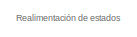
[diagram: root canvas - part 1/12, top left region]
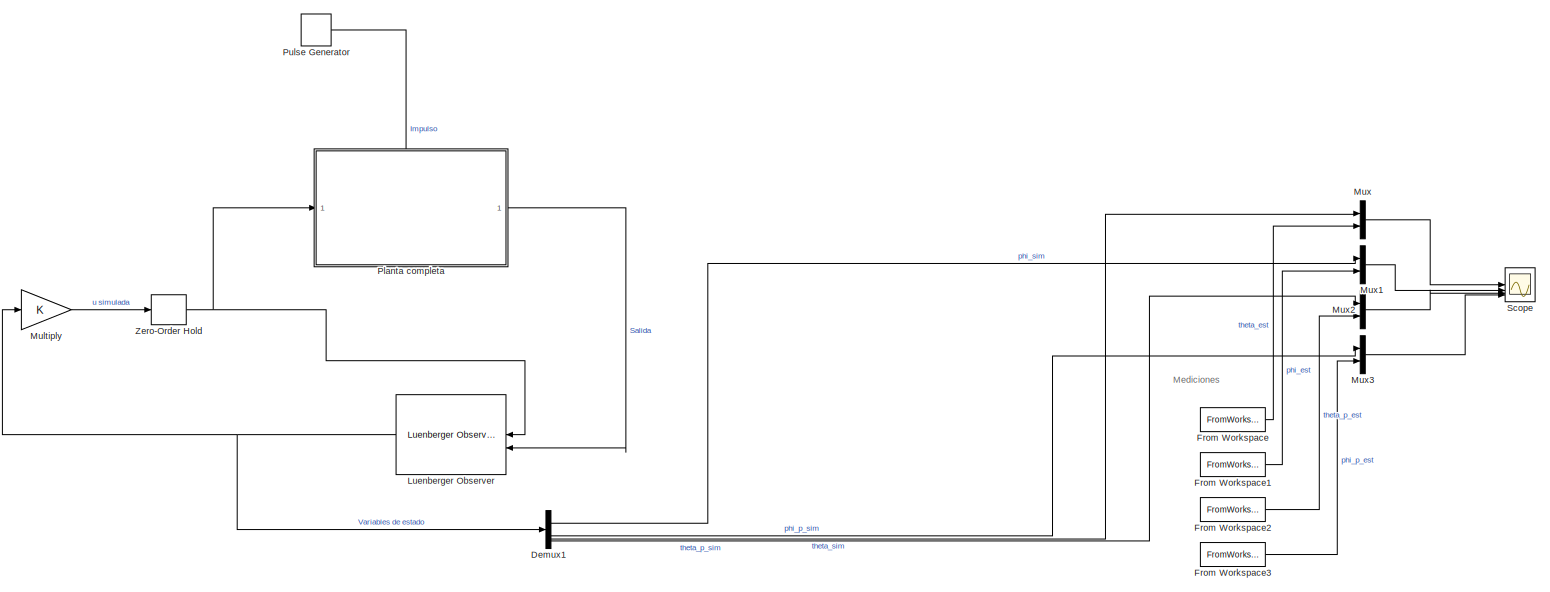
[diagram: root canvas - part 2/12, top left region]
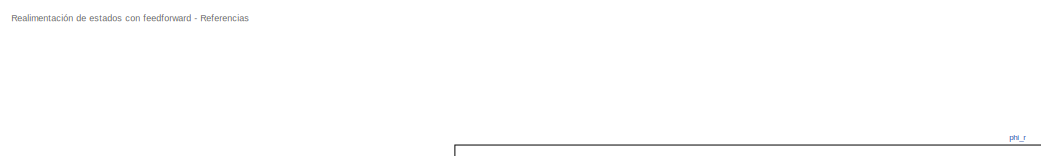
[diagram: root canvas - part 3/12, middle left region]
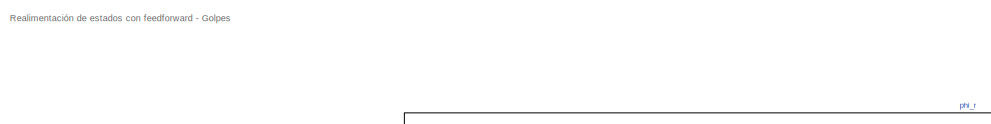
[diagram: root canvas - part 4/12, middle right region]
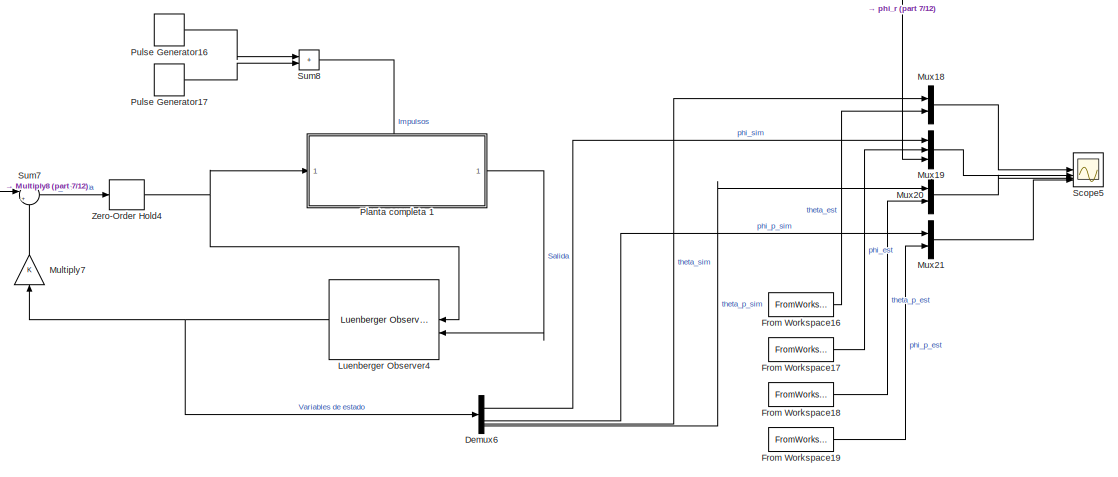
[diagram: root canvas - part 5/12, middle right region]
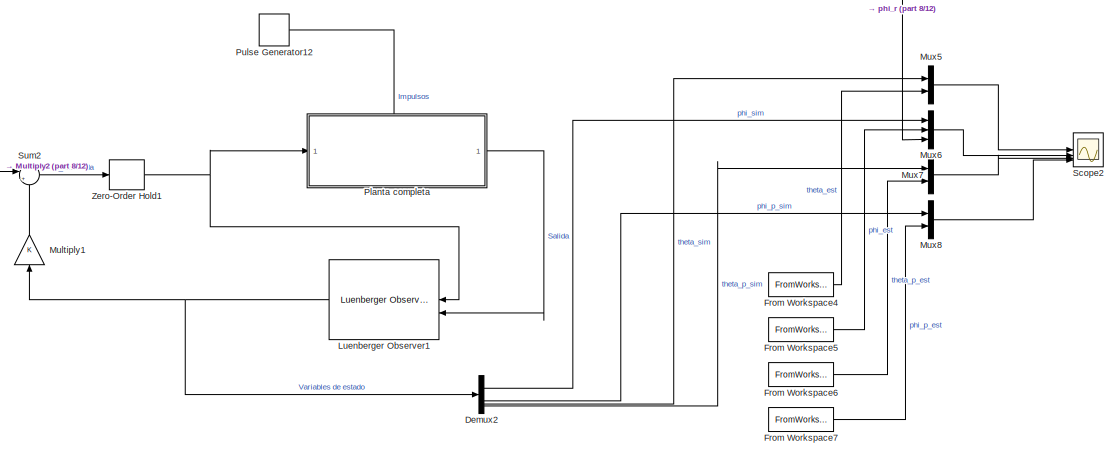
[diagram: root canvas - part 6/12, middle left region]
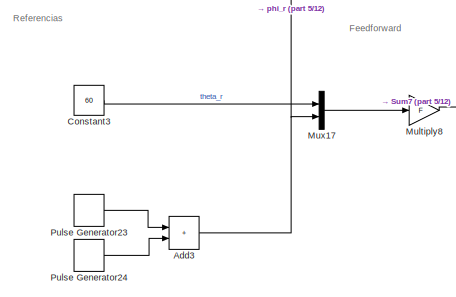
[diagram: root canvas - part 7/12, central region]
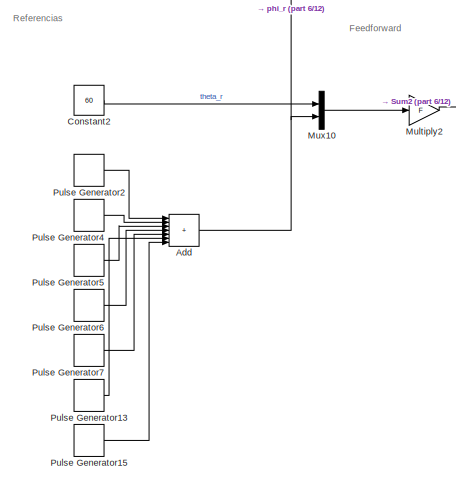
[diagram: root canvas - part 8/12, middle left region]
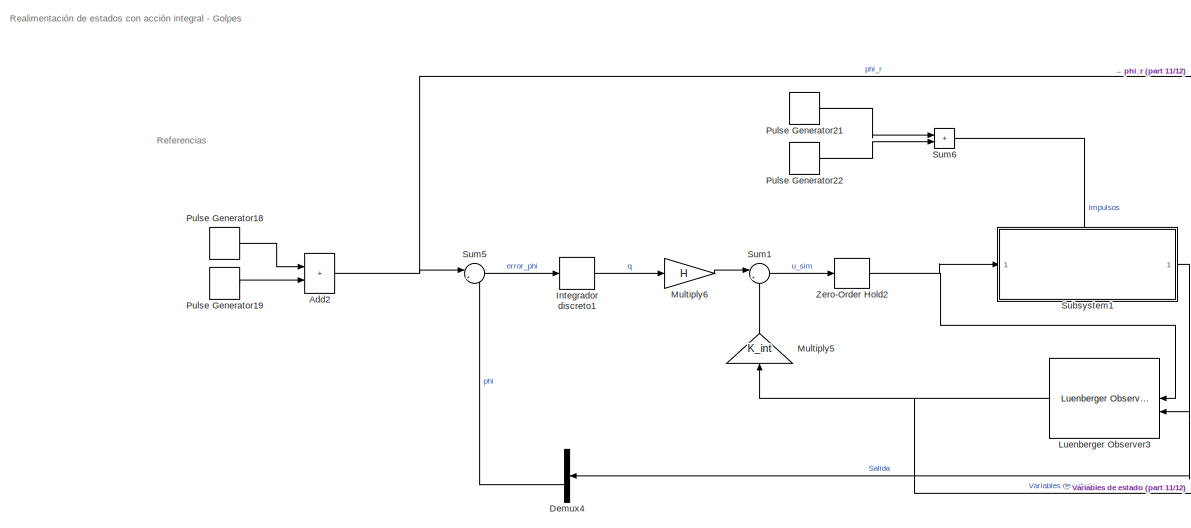
[diagram: root canvas - part 9/12, bottom center region]
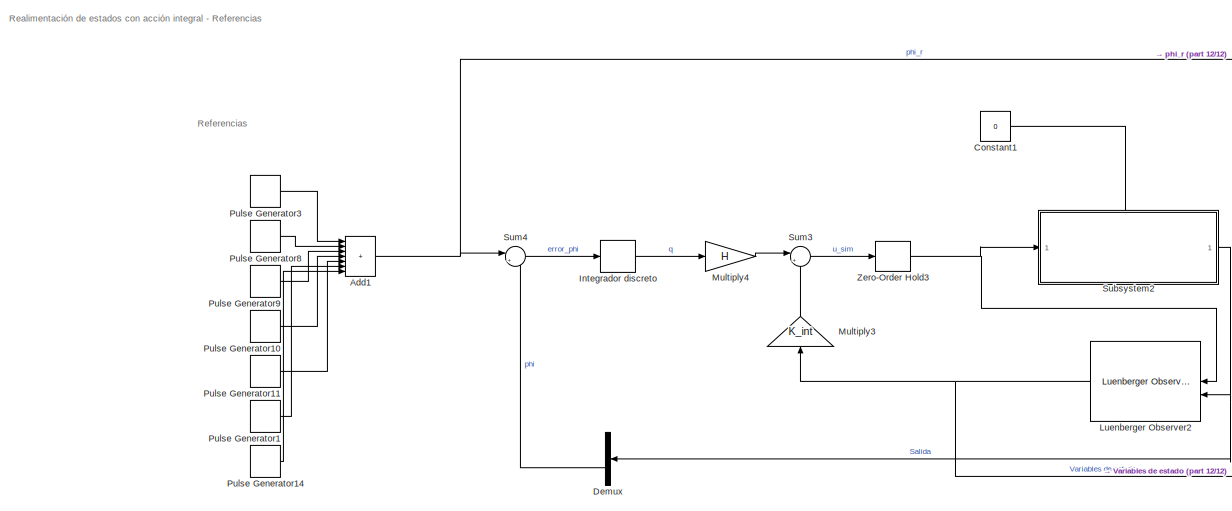
[diagram: root canvas - part 10/12, bottom left region]
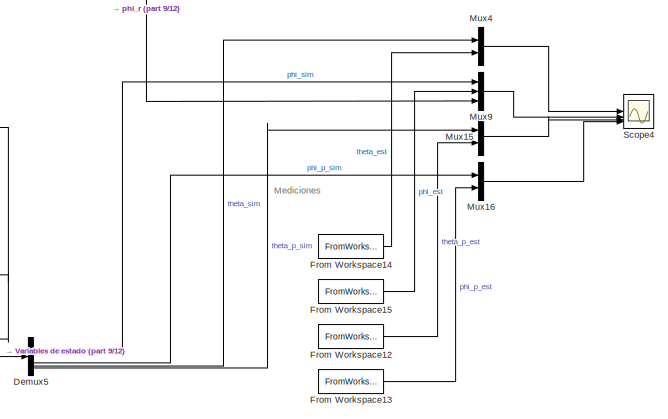
[diagram: root canvas - part 11/12, bottom right region]
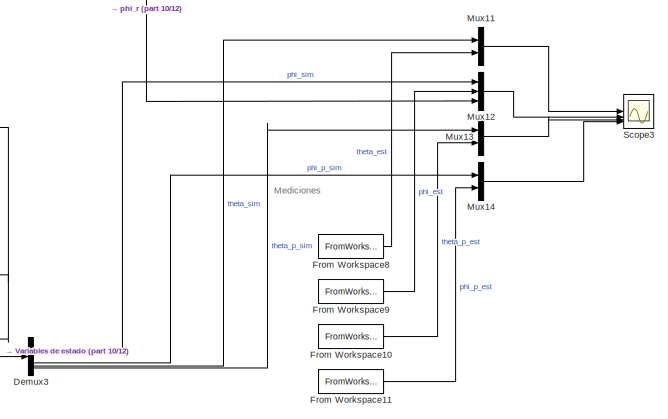
[diagram: root canvas - part 12/12, bottom center region]
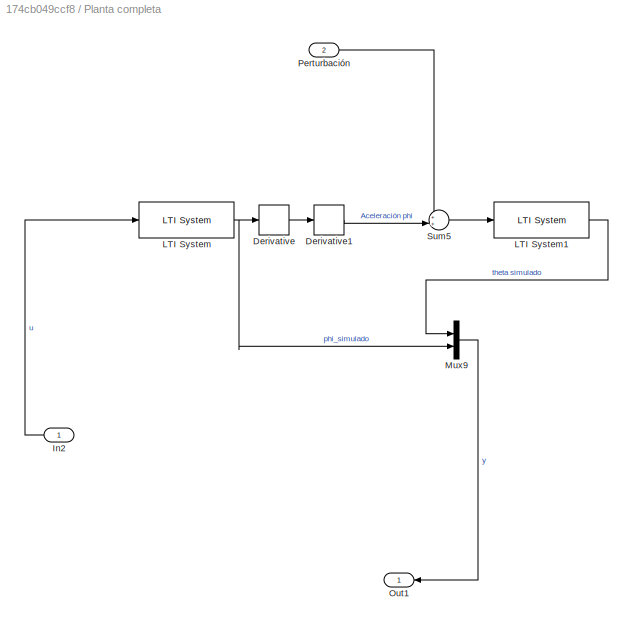
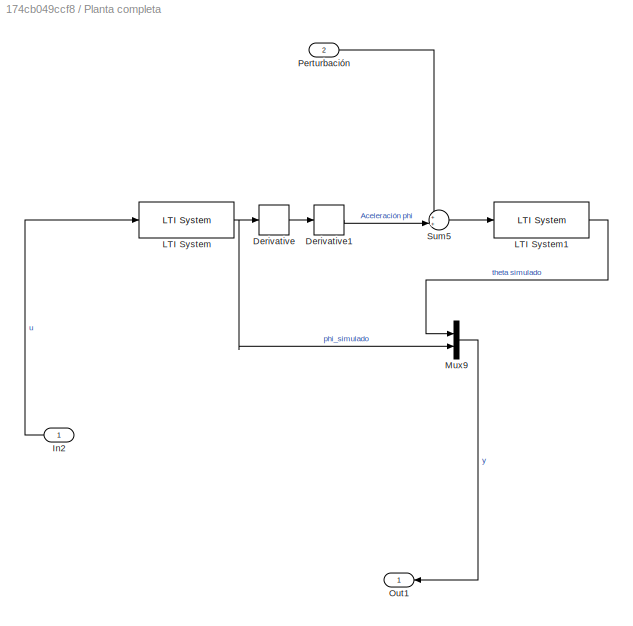
MODEL slx_174cb049ccf8
KIND model
CONFIG AbsTol = auto
CONFIG EnableMultiTasking = off
CONFIG FixedStep = auto
CONFIG MaxStep = auto
CONFIG MinStep = auto
CONFIG RelTol = 1e-3
CONFIG SampleTimeConstraint = Unconstrained
CONFIG SolverName = VariableStepAuto
CONFIG StartTime = 0.0
CONFIG StopTime = 56
BLOCK [Sum] Add
  IconShape = rectangular
  Inputs = +++++++
BLOCK [Sum] Add1
  IconShape = rectangular
  Inputs = +++++++
BLOCK [Sum] Add2
  IconShape = rectangular
BLOCK [Sum] Add3
  IconShape = rectangular
BLOCK [Constant] Constant1
  Value = 0
BLOCK [Constant] Constant2
  Value = 60
BLOCK [Constant] Constant3
  Value = 60
BLOCK [Demux] Demux
  Outputs = 2
BLOCK [Demux] Demux1
BLOCK [Demux] Demux2
BLOCK [Demux] Demux3
BLOCK [Demux] Demux4
  Outputs = 2
BLOCK [Demux] Demux5
BLOCK [Demux] Demux6
BLOCK [FromWorkspace] From Workspace
  OutDataTypeStr = double
  OutputAfterFinalValue = Setting to zero
  SampleTime = T
  VariableName = theta_est
BLOCK [FromWorkspace] From Workspace1
  OutDataTypeStr = double
  OutputAfterFinalValue = Setting to zero
  SampleTime = T
  VariableName = phi_est
BLOCK [FromWorkspace] From Workspace10
  OutDataTypeStr = double
  SampleTime = T
  VariableName = theta_p_est_he
BLOCK [FromWorkspace] From Workspace11
  OutDataTypeStr = double
  SampleTime = T
  VariableName = phi_p_est_he
BLOCK [FromWorkspace] From Workspace12
  OutDataTypeStr = double
  SampleTime = T
  VariableName = theta_p_est_hi
BLOCK [FromWorkspace] From Workspace13
  OutDataTypeStr = double
  SampleTime = T
  VariableName = phi_p_est_hi
BLOCK [FromWorkspace] From Workspace14
  OutDataTypeStr = double
  OutputAfterFinalValue = Setting to zero
  SampleTime = T
  VariableName = theta_est_hi
BLOCK [FromWorkspace] From Workspace15
  OutDataTypeStr = double
  SampleTime = T
  VariableName = phi_est_hi
BLOCK [FromWorkspace] From Workspace16
  OutDataTypeStr = double
  OutputAfterFinalValue = Setting to zero
  SampleTime = T
  VariableName = theta_est_fi
BLOCK [FromWorkspace] From Workspace17
  OutputAfterFinalValue = Setting to zero
  SampleTime = T
  VariableName = phi_est_fi
BLOCK [FromWorkspace] From Workspace18
  OutDataTypeStr = double
  OutputAfterFinalValue = Setting to zero
  SampleTime = T
  VariableName = theta_p_est_fi
BLOCK [FromWorkspace] From Workspace19
  OutDataTypeStr = double
  OutputAfterFinalValue = Setting to zero
  SampleTime = T
  VariableName = phi_p_est_fi
BLOCK [FromWorkspace] From Workspace2
  OutDataTypeStr = double
  OutputAfterFinalValue = Setting to zero
  SampleTime = T
  VariableName = theta_p_est
BLOCK [FromWorkspace] From Workspace3
  OutDataTypeStr = double
  OutputAfterFinalValue = Setting to zero
  SampleTime = T
  VariableName = phi_p_est
BLOCK [FromWorkspace] From Workspace4
  OutDataTypeStr = double
  OutputAfterFinalValue = Setting to zero
  SampleTime = T
  VariableName = theta_est_fe
BLOCK [FromWorkspace] From Workspace5
  OutDataTypeStr = double
  SampleTime = T
  VariableName = phi_est_fe
BLOCK [FromWorkspace] From Workspace6
  OutDataTypeStr = double
  SampleTime = T
  VariableName = theta_p_est_fe
BLOCK [FromWorkspace] From Workspace7
  OutDataTypeStr = double
  SampleTime = T
  VariableName = phi_p_est_fe
BLOCK [FromWorkspace] From Workspace8
  OutDataTypeStr = double
  OutputAfterFinalValue = Setting to zero
  SampleTime = T
  VariableName = theta_est_he
BLOCK [FromWorkspace] From Workspace9
  OutDataTypeStr = double
  SampleTime = T
  VariableName = phi_est_he
BLOCK [DiscreteIntegrator] Integrador discreto
  ICPrevOutput = DiscIntNeverNeededParam
  ICPrevScaledInput = DiscIntNeverNeededParam
  InitialConditionSetting = Auto
  SampleTime = T
  gainval = 1/T
BLOCK [DiscreteIntegrator] Integrador discreto1
  ICPrevOutput = DiscIntNeverNeededParam
  ICPrevScaledInput = DiscIntNeverNeededParam
  InitialConditionSetting = Auto
  SampleTime = T
  gainval = 1/T
BLOCK [Reference] Luenberger Observer  REF=eeLuenbergerObserver/Luenberger Observer
  LibrarySourceBlock = ee_sl_lib/Observers/Luenberger Observer
  SourceBlock = eeLuenbergerObserver/Luenberger Observer
  SourceType = Luenberger Observer
BLOCK [Reference] Luenberger Observer1  REF=eeLuenbergerObserver/Luenberger Observer
  LibrarySourceBlock = ee_sl_lib/Observers/Luenberger Observer
  SourceBlock = eeLuenbergerObserver/Luenberger Observer
  SourceType = Luenberger Observer
BLOCK [Reference] Luenberger Observer2  REF=eeLuenbergerObserver/Luenberger Observer
  LibrarySourceBlock = ee_sl_lib/Observers/Luenberger Observer
  SourceBlock = eeLuenbergerObserver/Luenberger Observer
  SourceType = Luenberger Observer
BLOCK [Reference] Luenberger Observer3  REF=eeLuenbergerObserver/Luenberger Observer
  LibrarySourceBlock = ee_sl_lib/Observers/Luenberger Observer
  SourceBlock = eeLuenbergerObserver/Luenberger Observer
  SourceType = Luenberger Observer
BLOCK [Reference] Luenberger Observer4  REF=eeLuenbergerObserver/Luenberger Observer
  LibrarySourceBlock = ee_sl_lib/Observers/Luenberger Observer
  SourceBlock = eeLuenbergerObserver/Luenberger Observer
  SourceType = Luenberger Observer
BLOCK [Gain] Multiply
  Gain = K
  Multiplication = Matrix(K*u)
BLOCK [Gain] Multiply1
  Gain = K
  Multiplication = Matrix(K*u)
  NameLocation = right
BLOCK [Gain] Multiply2
  Gain = F
  Multiplication = Matrix(K*u)
BLOCK [Gain] Multiply3
  Gain = K_int
  Multiplication = Matrix(K*u)
  NameLocation = right
BLOCK [Gain] Multiply4
  Gain = H
  Multiplication = Matrix(K*u)
BLOCK [Gain] Multiply5
  Gain = K_int
  Multiplication = Matrix(K*u)
  NameLocation = right
BLOCK [Gain] Multiply6
  Gain = H
  Multiplication = Matrix(K*u)
BLOCK [Gain] Multiply7
  Gain = K
  Multiplication = Matrix(K*u)
  NameLocation = right
BLOCK [Gain] Multiply8
  Gain = F
  Multiplication = Matrix(K*u)
BLOCK [Mux] Mux
  DisplayOption = bar
  Inputs = 2
BLOCK [Mux] Mux1
  DisplayOption = bar
  Inputs = 2
BLOCK [Mux] Mux10
  DisplayOption = bar
  Inputs = 2
BLOCK [Mux] Mux11
  DisplayOption = bar
  Inputs = 2
BLOCK [Mux] Mux12
  DisplayOption = bar
  Inputs = 3
BLOCK [Mux] Mux13
  DisplayOption = bar
  Inputs = 2
BLOCK [Mux] Mux14
  DisplayOption = bar
  Inputs = 2
BLOCK [Mux] Mux15
  DisplayOption = bar
  Inputs = 2
BLOCK [Mux] Mux16
  DisplayOption = bar
  Inputs = 2
BLOCK [Mux] Mux17
  DisplayOption = bar
  Inputs = 2
BLOCK [Mux] Mux18
  DisplayOption = bar
  Inputs = 2
BLOCK [Mux] Mux19
  DisplayOption = bar
  Inputs = 3
BLOCK [Mux] Mux2
  DisplayOption = bar
  Inputs = 2
BLOCK [Mux] Mux20
  DisplayOption = bar
  Inputs = 2
BLOCK [Mux] Mux21
  DisplayOption = bar
  Inputs = 2
BLOCK [Mux] Mux3
  DisplayOption = bar
  Inputs = 2
BLOCK [Mux] Mux4
  DisplayOption = bar
  Inputs = 2
BLOCK [Mux] Mux5
  DisplayOption = bar
  Inputs = 2
BLOCK [Mux] Mux6
  DisplayOption = bar
  Inputs = 3
BLOCK [Mux] Mux7
  DisplayOption = bar
  Inputs = 2
BLOCK [Mux] Mux8
  DisplayOption = bar
  Inputs = 2
BLOCK [Mux] Mux9
  DisplayOption = bar
  Inputs = 3
BLOCK [SubSystem] Planta completa
  PortSchema = {"entries":[{"content":{"sides":[{"content":{"connectorIds":["In1"]},"type":"ConnectorPlacement.EquallySpacedRectSide","uuid":"327bad0f-c414-403a-b9df-5d815b8b637d"},{"content":{"connectorIds":["Out1"],"side":"RIGHT"},"type":"ConnectorPlacement.EquallySpacedRectSide","uuid":"9527d032-ecf2-4fa1-93b0-9f68fe8f2eae"},{"content":{"connectorIds":["In2"],"side":"TOP"},"type":"ConnectorPlacement.EquallySp...<+245ch>  <repeated x5 — deduplicated; at blocks: Planta completa, Planta completa 1, Subsystem1, Subsystem2>
BLOCK [SubSystem] Planta completa 
BLOCK [Derivative] Planta completa /Derivative
BLOCK [Derivative] Planta completa /Derivative1
BLOCK [Inport] Planta completa /In2
  IconDisplay = Signal name
BLOCK [Reference] Planta completa /LTI System  REF=cstblocks/LTI System
  SourceBlock = cstblocks/LTI System
  SourceType = LTI Block
BLOCK [Reference] Planta completa /LTI System1  REF=cstblocks/LTI System
  SourceBlock = cstblocks/LTI System
  SourceType = LTI Block
BLOCK [Mux] Planta completa /Mux9
  DisplayOption = bar
  Inputs = 2
BLOCK [Outport] Planta completa /Out1
  IconDisplay = Signal name
BLOCK [Inport] Planta completa /Perturbación
  Port = 2
BLOCK [Sum] Planta completa /Sum5
  AccumDataTypeStr = single
  InputSameDT = on
  Inputs = ++|
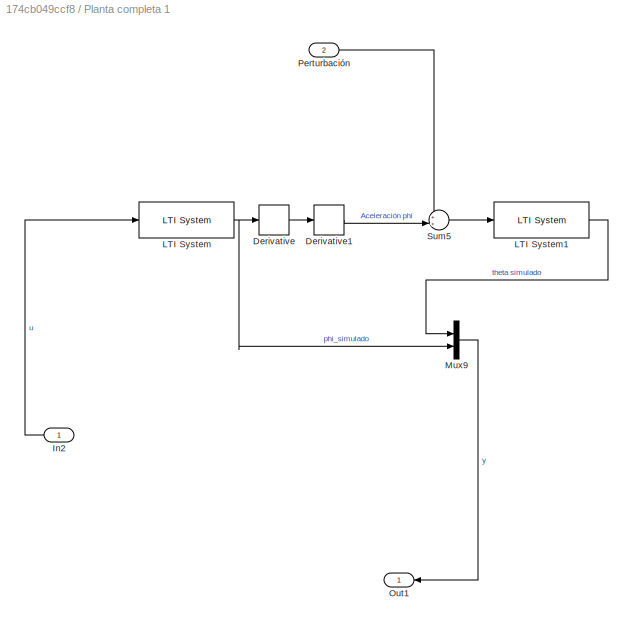
BLOCK [SubSystem] Planta completa 1
BLOCK [Derivative] Planta completa 1/Derivative
BLOCK [Derivative] Planta completa 1/Derivative1
BLOCK [Inport] Planta completa 1/In2
  IconDisplay = Signal name
BLOCK [Reference] Planta completa 1/LTI System  REF=cstblocks/LTI System
  SourceBlock = cstblocks/LTI System
  SourceType = LTI Block
BLOCK [Reference] Planta completa 1/LTI System1  REF=cstblocks/LTI System
  SourceBlock = cstblocks/LTI System
  SourceType = LTI Block
BLOCK [Mux] Planta completa 1/Mux9
  DisplayOption = bar
  Inputs = 2
BLOCK [Outport] Planta completa 1/Out1
  IconDisplay = Signal name
BLOCK [Inport] Planta completa 1/Perturbación
  Port = 2
BLOCK [Sum] Planta completa 1/Sum5
  AccumDataTypeStr = single
  InputSameDT = on
  Inputs = ++|
BLOCK [Derivative] Planta completa/Derivative
BLOCK [Derivative] Planta completa/Derivative1
BLOCK [Inport] Planta completa/In2
  IconDisplay = Signal name
BLOCK [Reference] Planta completa/LTI System  REF=cstblocks/LTI System
  SourceBlock = cstblocks/LTI System
  SourceType = LTI Block
BLOCK [Reference] Planta completa/LTI System1  REF=cstblocks/LTI System
  SourceBlock = cstblocks/LTI System
  SourceType = LTI Block
BLOCK [Mux] Planta completa/Mux9
  DisplayOption = bar
  Inputs = 2
BLOCK [Outport] Planta completa/Out1
  IconDisplay = Signal name
BLOCK [Inport] Planta completa/Perturbación
  Port = 2
BLOCK [Sum] Planta completa/Sum5
  AccumDataTypeStr = single
  InputSameDT = on
  Inputs = ++|
BLOCK [DiscretePulseGenerator] Pulse Generator
  Amplitude = -8000
  Period = 100
  PhaseDelay = 0.4
  PulseType = Time based
  PulseWidth = 0.1
BLOCK [DiscretePulseGenerator] Pulse Generator1
  Amplitude = 0
  Period = 100
  PhaseDelay = 40
  PulseType = Time based
  PulseWidth = 8
BLOCK [DiscretePulseGenerator] Pulse Generator10
  Amplitude = 45
  Period = 100
  PhaseDelay = 24
  PulseType = Time based
  PulseWidth = 8
BLOCK [DiscretePulseGenerator] Pulse Generator11
  Amplitude = 10
  Period = 100
  PhaseDelay = 32
  PulseType = Time based
  PulseWidth = 8
BLOCK [DiscretePulseGenerator] Pulse Generator12
  Amplitude = -8000
  Period = 100
  PhaseDelay = 100
  PulseType = Time based
  PulseWidth = 0.1
BLOCK [DiscretePulseGenerator] Pulse Generator13
  Amplitude = -30
  Period = 100
  PhaseDelay = 40-0.445
  PulseType = Time based
  PulseWidth = 8
BLOCK [DiscretePulseGenerator] Pulse Generator14
  Amplitude = 20
  Period = 100
  PhaseDelay = 48
  PulseType = Time based
  PulseWidth = 8
BLOCK [DiscretePulseGenerator] Pulse Generator15
  Amplitude = -10
  Period = 100
  PhaseDelay = 48-0.445
  PulseType = Time based
  PulseWidth = 8
BLOCK [DiscretePulseGenerator] Pulse Generator16
  Amplitude = 50000
  Period = 100
  PhaseDelay = 4.77
  PulseType = Time based
  PulseWidth = 0.01
BLOCK [DiscretePulseGenerator] Pulse Generator17
  Amplitude = -80000
  Period = 100
  PhaseDelay = 25.8
  PulseType = Time based
  PulseWidth = 0.01
BLOCK [DiscretePulseGenerator] Pulse Generator18
  Amplitude = 45
  Period = 100
  PulseType = Time based
  PulseWidth = 20
BLOCK [DiscretePulseGenerator] Pulse Generator19
  Amplitude = -10
  Period = 100
  PhaseDelay = 20
  PulseType = Time based
  PulseWidth = 90
BLOCK [DiscretePulseGenerator] Pulse Generator2
  Amplitude = 30
  Period = 100
  PulseType = Time based
  PulseWidth = 8
BLOCK [DiscretePulseGenerator] Pulse Generator21
  Amplitude = 80000
  Period = 100
  PhaseDelay = 8.136
  PulseType = Time based
  PulseWidth = 0.01
BLOCK [DiscretePulseGenerator] Pulse Generator22
  Amplitude = 80000
  Period = 100
  PhaseDelay = 34.135
  PulseType = Time based
  PulseWidth = 0.01
BLOCK [DiscretePulseGenerator] Pulse Generator23
  Amplitude = 30
  Period = 100
  PulseType = Time based
  PulseWidth = 20
BLOCK [DiscretePulseGenerator] Pulse Generator24
  Amplitude = 20
  Period = 100
  PhaseDelay = 20
  PulseType = Time based
  PulseWidth = 90
BLOCK [DiscretePulseGenerator] Pulse Generator3
  Amplitude = -20
  Period = 100
  PulseType = Time based
  PulseWidth = 8
BLOCK [DiscretePulseGenerator] Pulse Generator4
  Amplitude = -30
  Period = 100
  PhaseDelay = 8-0.445
  PulseType = Time based
  PulseWidth = 8
BLOCK [DiscretePulseGenerator] Pulse Generator5
  Amplitude = -10
  Period = 100
  PhaseDelay = 16-0.445
  PulseType = Time based
  PulseWidth = 8
BLOCK [DiscretePulseGenerator] Pulse Generator6
  Amplitude = 20
  Period = 100
  PhaseDelay = 24-0.445
  PulseType = Time based
  PulseWidth = 8
BLOCK [DiscretePulseGenerator] Pulse Generator7
  Amplitude = 0
  Period = 100
  PhaseDelay = 32-0.445
  PulseType = Time based
  PulseWidth = 8
BLOCK [DiscretePulseGenerator] Pulse Generator8
  Amplitude = 0
  Period = 100
  PhaseDelay = 8
  PulseType = Time based
  PulseWidth = 8
BLOCK [DiscretePulseGenerator] Pulse Generator9
  Amplitude = 20
  Period = 100
  PhaseDelay = 16
  PulseType = Time based
  PulseWidth = 8
BLOCK [Scope] Scope
  Floating = off
  NumInputPorts = 4
  ScopeSpecificationString = Simulink.scopes.TimeScopeBlockCfg('CurrentConfiguration', extmgr.ConfigurationSet(extmgr.Configuration('Core','General UI',true),extmgr.Configuration('Core','Source UI',true),extmgr.Configuration('Sources','WiredSimulink',true),extmgr.Configuration('Visuals','Time Domain',true,'SerializedDisplays',{struct('MinYLimReal','-46.51773','MaxYLimReal','56.10231','YLabelReal','\theta','MinYLimMag','0.0000...<+3553ch>
BLOCK [Scope] Scope2
  Floating = off
  NumInputPorts = 4
  ScopeSpecificationString = Simulink.scopes.TimeScopeBlockCfg('CurrentConfiguration', extmgr.ConfigurationSet(extmgr.Configuration('Core','General UI',true),extmgr.Configuration('Core','Source UI',true),extmgr.Configuration('Sources','WiredSimulink',true,'DataLoggingVariableName','ScopeData2'),extmgr.Configuration('Visuals','Time Domain',true,'SerializedDisplays',{struct('MinYLimReal','-14.06101','MaxYLimReal','20.43373','YL...<+3695ch>
BLOCK [Scope] Scope3
  Floating = off
  NumInputPorts = 4
  ScopeSpecificationString = Simulink.scopes.TimeScopeBlockCfg('CurrentConfiguration', extmgr.ConfigurationSet(extmgr.Configuration('Core','General UI',true),extmgr.Configuration('Core','Source UI',true),extmgr.Configuration('Sources','WiredSimulink',true,'DataLoggingVariableName','ScopeData3'),extmgr.Configuration('Visuals','Time Domain',true,'SerializedDisplays',{struct('MinYLimReal','-8.88225','MaxYLimReal','6.77498','YLab...<+3710ch>
BLOCK [Scope] Scope4
  Floating = off
  NumInputPorts = 4
  ScopeSpecificationString = Simulink.scopes.TimeScopeBlockCfg('CurrentConfiguration', extmgr.ConfigurationSet(extmgr.Configuration('Core','General UI',true),extmgr.Configuration('Core','Source UI',true),extmgr.Configuration('Sources','WiredSimulink',true,'DataLoggingVariableName','ScopeData1'),extmgr.Configuration('Visuals','Time Domain',true,'SerializedDisplays',{struct('MinYLimReal','-63.70797','MaxYLimReal','41.19924','YL...<+3716ch>
BLOCK [Scope] Scope5
  Floating = off
  NumInputPorts = 4
  ScopeSpecificationString = Simulink.scopes.TimeScopeBlockCfg('CurrentConfiguration', extmgr.ConfigurationSet(extmgr.Configuration('Core','General UI',true),extmgr.Configuration('Core','Source UI',true),extmgr.Configuration('Sources','WiredSimulink',true,'DataLoggingVariableName','ScopeData1'),extmgr.Configuration('Visuals','Time Domain',true,'SerializedDisplays',{struct('MinYLimReal','-65.20376','MaxYLimReal','54.8199','YLa...<+3703ch>
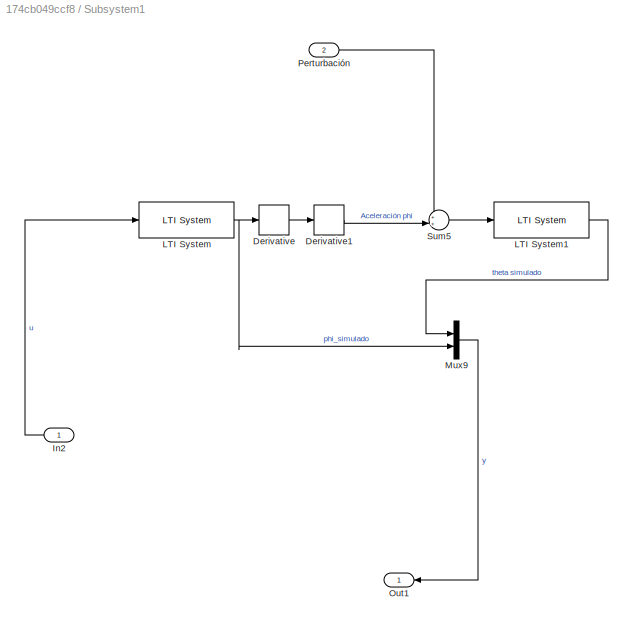
BLOCK [SubSystem] Subsystem1
BLOCK [Derivative] Subsystem1/Derivative
BLOCK [Derivative] Subsystem1/Derivative1
BLOCK [Inport] Subsystem1/In2
  IconDisplay = Signal name
BLOCK [Reference] Subsystem1/LTI System  REF=cstblocks/LTI System
  SourceBlock = cstblocks/LTI System
  SourceType = LTI Block
BLOCK [Reference] Subsystem1/LTI System1  REF=cstblocks/LTI System
  SourceBlock = cstblocks/LTI System
  SourceType = LTI Block
BLOCK [Mux] Subsystem1/Mux9
  DisplayOption = bar
  Inputs = 2
BLOCK [Outport] Subsystem1/Out1
  IconDisplay = Signal name
BLOCK [Inport] Subsystem1/Perturbación
  Port = 2
BLOCK [Sum] Subsystem1/Sum5
  AccumDataTypeStr = single
  InputSameDT = on
  Inputs = ++|
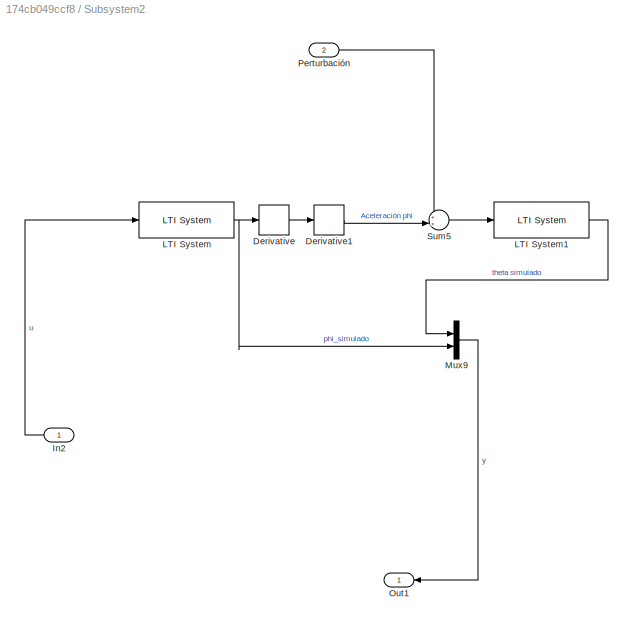
BLOCK [SubSystem] Subsystem2
BLOCK [Derivative] Subsystem2/Derivative
BLOCK [Derivative] Subsystem2/Derivative1
BLOCK [Inport] Subsystem2/In2
  IconDisplay = Signal name
BLOCK [Reference] Subsystem2/LTI System  REF=cstblocks/LTI System
  SourceBlock = cstblocks/LTI System
  SourceType = LTI Block
BLOCK [Reference] Subsystem2/LTI System1  REF=cstblocks/LTI System
  SourceBlock = cstblocks/LTI System
  SourceType = LTI Block
BLOCK [Mux] Subsystem2/Mux9
  DisplayOption = bar
  Inputs = 2
BLOCK [Outport] Subsystem2/Out1
  IconDisplay = Signal name
BLOCK [Inport] Subsystem2/Perturbación
  Port = 2
BLOCK [Sum] Subsystem2/Sum5
  AccumDataTypeStr = single
  InputSameDT = on
  Inputs = ++|
BLOCK [Sum] Sum1
  Inputs = |++
BLOCK [Sum] Sum2
  Inputs = |++
BLOCK [Sum] Sum3
  Inputs = |++
BLOCK [Sum] Sum4
  Inputs = |+-
BLOCK [Sum] Sum5
  Inputs = |+-
BLOCK [Sum] Sum6
  IconShape = rectangular
  Inputs = |++
BLOCK [Sum] Sum7
  Inputs = |++
BLOCK [Sum] Sum8
  IconShape = rectangular
  Inputs = |++
BLOCK [ZeroOrderHold] Zero-Order Hold
  SampleTime = T
BLOCK [ZeroOrderHold] Zero-Order Hold1
  SampleTime = T
BLOCK [ZeroOrderHold] Zero-Order Hold2
  SampleTime = T
BLOCK [ZeroOrderHold] Zero-Order Hold3
  SampleTime = T
BLOCK [ZeroOrderHold] Zero-Order Hold4
  SampleTime = T
ANNOTATION (root): Mediciones
ANNOTATION (root): Feedforward
ANNOTATION (root): Realimentación de estados
ANNOTATION (root): Realimentación de estados con acción integral - Golpes
ANNOTATION (root): Realimentación de estados con acción integral - Referencias
ANNOTATION (root): Realimentación de estados con feedforward - Golpes
ANNOTATION (root): Realimentación de estados con feedforward - Referencias
ANNOTATION (root): Referencias
NET Add1:1 -> Mux12:3, Sum4:1
NET Add2:1 -> Mux9:3, Sum5:1
NET Add3:1 -> Mux17:2, Mux19:3
NET Add:1 -> Mux10:2, Mux6:3
LINE Constant1:1 -> Subsystem2:2
LINE Constant2:1 -> Mux10:1
LINE Constant3:1 -> Mux17:1
LINE Demux1:1 -> Mux1:1
LINE Demux1:2 -> Mux3:1
LINE Demux1:3 -> Mux:1
LINE Demux1:4 -> Mux2:1
LINE Demux2:1 -> Mux6:1
LINE Demux2:2 -> Mux8:1
LINE Demux2:3 -> Mux5:1
LINE Demux2:4 -> Mux7:1
LINE Demux3:1 -> Mux12:1
LINE Demux3:2 -> Mux14:1
LINE Demux3:3 -> Mux11:1
LINE Demux3:4 -> Mux13:1
LINE Demux4:2 -> Sum5:2
LINE Demux5:1 -> Mux9:1
LINE Demux5:2 -> Mux16:1
LINE Demux5:3 -> Mux4:1
LINE Demux5:4 -> Mux15:1
LINE Demux6:1 -> Mux19:1
LINE Demux6:2 -> Mux21:1
LINE Demux6:3 -> Mux18:1
LINE Demux6:4 -> Mux20:1
LINE Demux:2 -> Sum4:2
LINE From Workspace10:1 -> Mux13:2
LINE From Workspace11:1 -> Mux14:2
LINE From Workspace12:1 -> Mux15:2
LINE From Workspace13:1 -> Mux16:2
LINE From Workspace14:1 -> Mux4:2
LINE From Workspace15:1 -> Mux9:2
LINE From Workspace16:1 -> Mux18:2
LINE From Workspace17:1 -> Mux19:2
LINE From Workspace18:1 -> Mux20:2
LINE From Workspace19:1 -> Mux21:2
LINE From Workspace1:1 -> Mux1:2
LINE From Workspace2:1 -> Mux2:2
LINE From Workspace3:1 -> Mux3:2
LINE From Workspace4:1 -> Mux5:2
LINE From Workspace5:1 -> Mux6:2
LINE From Workspace6:1 -> Mux7:2
LINE From Workspace7:1 -> Mux8:2
LINE From Workspace8:1 -> Mux11:2
LINE From Workspace9:1 -> Mux12:2
LINE From Workspace:1 -> Mux:2
LINE Integrador discreto1:1 -> Multiply6:1
LINE Integrador discreto:1 -> Multiply4:1
NET Luenberger Observer1:1 -> Demux2:1, Multiply1:1
NET Luenberger Observer2:1 -> Demux3:1, Multiply3:1
NET Luenberger Observer3:1 -> Demux5:1, Multiply5:1
NET Luenberger Observer4:1 -> Demux6:1, Multiply7:1
NET Luenberger Observer:1 -> Demux1:1, Multiply:1
LINE Multiply1:1 -> Sum2:2
LINE Multiply2:1 -> Sum2:1
LINE Multiply3:1 -> Sum3:2
LINE Multiply4:1 -> Sum3:1
LINE Multiply5:1 -> Sum1:2
LINE Multiply6:1 -> Sum1:1
LINE Multiply7:1 -> Sum7:2
LINE Multiply8:1 -> Sum7:1
LINE Multiply:1 -> Zero-Order Hold:1
LINE Mux10:1 -> Multiply2:1
LINE Mux11:1 -> Scope3:1
LINE Mux12:1 -> Scope3:2
LINE Mux13:1 -> Scope3:3
LINE Mux14:1 -> Scope3:4
LINE Mux15:1 -> Scope4:3
LINE Mux16:1 -> Scope4:4
LINE Mux17:1 -> Multiply8:1
LINE Mux18:1 -> Scope5:1
LINE Mux19:1 -> Scope5:2
LINE Mux1:1 -> Scope:2
LINE Mux20:1 -> Scope5:3
LINE Mux21:1 -> Scope5:4
LINE Mux2:1 -> Scope:3
LINE Mux3:1 -> Scope:4
LINE Mux4:1 -> Scope4:1
LINE Mux5:1 -> Scope2:1
LINE Mux6:1 -> Scope2:2
LINE Mux7:1 -> Scope2:3
LINE Mux8:1 -> Scope2:4
LINE Mux9:1 -> Scope4:2
LINE Mux:1 -> Scope:1
LINE Planta completa /Derivative1:1 -> Planta completa /Sum5:2
LINE Planta completa /Derivative:1 -> Planta completa /Derivative1:1
LINE Planta completa /In2:1 -> Planta completa /LTI System:1
LINE Planta completa /LTI System1:1 -> Planta completa /Mux9:1
NET Planta completa /LTI System:1 -> Planta completa /Derivative:1, Planta completa /Mux9:2
LINE Planta completa /Mux9:1 -> Planta completa /Out1:1
LINE Planta completa /Perturbación:1 -> Planta completa /Sum5:1
LINE Planta completa /Sum5:1 -> Planta completa /LTI System1:1
LINE Planta completa 1/Derivative1:1 -> Planta completa 1/Sum5:2
LINE Planta completa 1/Derivative:1 -> Planta completa 1/Derivative1:1
LINE Planta completa 1/In2:1 -> Planta completa 1/LTI System:1
LINE Planta completa 1/LTI System1:1 -> Planta completa 1/Mux9:1
NET Planta completa 1/LTI System:1 -> Planta completa 1/Derivative:1, Planta completa 1/Mux9:2
LINE Planta completa 1/Mux9:1 -> Planta completa 1/Out1:1
LINE Planta completa 1/Perturbación:1 -> Planta completa 1/Sum5:1
LINE Planta completa 1/Sum5:1 -> Planta completa 1/LTI System1:1
LINE Planta completa 1:1 -> Luenberger Observer4:2
LINE Planta completa :1 -> Luenberger Observer1:2
LINE Planta completa/Derivative1:1 -> Planta completa/Sum5:2
LINE Planta completa/Derivative:1 -> Planta completa/Derivative1:1
LINE Planta completa/In2:1 -> Planta completa/LTI System:1
LINE Planta completa/LTI System1:1 -> Planta completa/Mux9:1
NET Planta completa/LTI System:1 -> Planta completa/Derivative:1, Planta completa/Mux9:2
LINE Planta completa/Mux9:1 -> Planta completa/Out1:1
LINE Planta completa/Perturbación:1 -> Planta completa/Sum5:1
LINE Planta completa/Sum5:1 -> Planta completa/LTI System1:1
LINE Planta completa:1 -> Luenberger Observer:2
LINE Pulse Generator10:1 -> Add1:4
LINE Pulse Generator11:1 -> Add1:5
LINE Pulse Generator12:1 -> Planta completa :2
LINE Pulse Generator13:1 -> Add:6
LINE Pulse Generator14:1 -> Add1:7
LINE Pulse Generator15:1 -> Add:7
LINE Pulse Generator16:1 -> Sum8:1
LINE Pulse Generator17:1 -> Sum8:2
LINE Pulse Generator18:1 -> Add2:1
LINE Pulse Generator19:1 -> Add2:2
LINE Pulse Generator1:1 -> Add1:6
LINE Pulse Generator21:1 -> Sum6:1
LINE Pulse Generator22:1 -> Sum6:2
LINE Pulse Generator23:1 -> Add3:1
LINE Pulse Generator24:1 -> Add3:2
LINE Pulse Generator2:1 -> Add:1
LINE Pulse Generator3:1 -> Add1:1
LINE Pulse Generator4:1 -> Add:2
LINE Pulse Generator5:1 -> Add:3
LINE Pulse Generator6:1 -> Add:4
LINE Pulse Generator7:1 -> Add:5
LINE Pulse Generator8:1 -> Add1:2
LINE Pulse Generator9:1 -> Add1:3
LINE Pulse Generator:1 -> Planta completa:2
LINE Subsystem1/Derivative1:1 -> Subsystem1/Sum5:2
LINE Subsystem1/Derivative:1 -> Subsystem1/Derivative1:1
LINE Subsystem1/In2:1 -> Subsystem1/LTI System:1
LINE Subsystem1/LTI System1:1 -> Subsystem1/Mux9:1
NET Subsystem1/LTI System:1 -> Subsystem1/Derivative:1, Subsystem1/Mux9:2
LINE Subsystem1/Mux9:1 -> Subsystem1/Out1:1
LINE Subsystem1/Perturbación:1 -> Subsystem1/Sum5:1
LINE Subsystem1/Sum5:1 -> Subsystem1/LTI System1:1
NET Subsystem1:1 -> Demux4:1, Luenberger Observer3:2
LINE Subsystem2/Derivative1:1 -> Subsystem2/Sum5:2
LINE Subsystem2/Derivative:1 -> Subsystem2/Derivative1:1
LINE Subsystem2/In2:1 -> Subsystem2/LTI System:1
LINE Subsystem2/LTI System1:1 -> Subsystem2/Mux9:1
NET Subsystem2/LTI System:1 -> Subsystem2/Derivative:1, Subsystem2/Mux9:2
LINE Subsystem2/Mux9:1 -> Subsystem2/Out1:1
LINE Subsystem2/Perturbación:1 -> Subsystem2/Sum5:1
LINE Subsystem2/Sum5:1 -> Subsystem2/LTI System1:1
NET Subsystem2:1 -> Demux:1, Luenberger Observer2:2
LINE Sum1:1 -> Zero-Order Hold2:1
LINE Sum2:1 -> Zero-Order Hold1:1
LINE Sum3:1 -> Zero-Order Hold3:1
LINE Sum4:1 -> Integrador discreto:1
LINE Sum5:1 -> Integrador discreto1:1
LINE Sum6:1 -> Subsystem1:2
LINE Sum7:1 -> Zero-Order Hold4:1
LINE Sum8:1 -> Planta completa 1:2
NET Zero-Order Hold1:1 -> Luenberger Observer1:1, Planta completa :1
NET Zero-Order Hold2:1 -> Luenberger Observer3:1, Subsystem1:1
NET Zero-Order Hold3:1 -> Luenberger Observer2:1, Subsystem2:1
NET Zero-Order Hold4:1 -> Luenberger Observer4:1, Planta completa 1:1
NET Zero-Order Hold:1 -> Luenberger Observer:1, Planta completa:1
note: NET lines group one-source signal fan-out (src -> all destinations, sorted); 1:1 wires keep LINE
